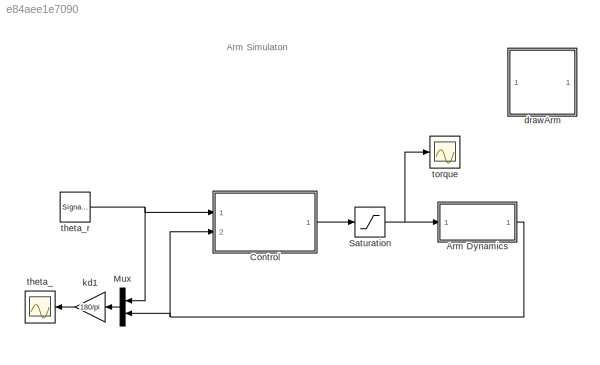
MODEL slx_e84aee1e7090
KIND model
CONFIG AbsTol = auto
CONFIG EnableMultiTasking = on
CONFIG FixedStep = auto
CONFIG InitFcn = addpath ./..\narm_param\narmParamHW7
CONFIG MaxStep = auto
CONFIG MinStep = auto
CONFIG RelTol = 1e-3
CONFIG SampleTimeConstraint = Unconstrained
CONFIG Solver = ode45
CONFIG SolverName = ode45
CONFIG StartTime = 0.0
CONFIG StopTime = 50
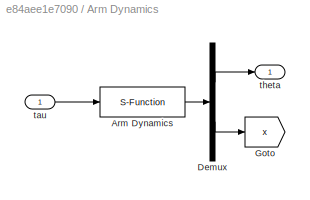
BLOCK [SubSystem] Arm Dynamics 
  Ports = [1, 1]
  RequestExecContextInheritance = off
  Variant = off
BLOCK [S-Function] Arm Dynamics /Arm Dynamics
  EnableBusSupport = off
  FunctionName = arm_dynamics
  Parameters = P
  Ports = [1, 1]
  SFcnIsStateOwnerBlock = off
  SFunctionDeploymentMode = off
BLOCK [Demux] Arm Dynamics /Demux
  DisplayOption = bar
  Outputs = [1;2]
  Ports = [1, 2]
BLOCK [Goto] Arm Dynamics /Goto
  GotoTag = x
  TagVisibility = global
BLOCK [Inport] Arm Dynamics /tau
  IconDisplay = Port number
BLOCK [Outport] Arm Dynamics /theta 
  IconDisplay = Port number
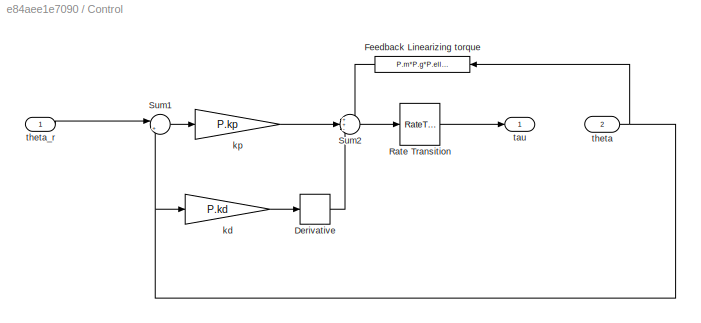
BLOCK [SubSystem] Control
  Ports = [2, 1]
  RequestExecContextInheritance = off
  Variant = off
BLOCK [Derivative] Control/Derivative
  CoefficientInTFapproximation = P.sigma
BLOCK [Fcn] Control/Feedback Linearizing torque
  Expr = P.m*P.g*P.ell/2*cos(u)
BLOCK [RateTransition] Control/Rate Transition
  OutPortSampleTime = P.Ts
BLOCK [Sum] Control/Sum1
  IconShape = round
  InputSameDT = off
  Inputs = |+-
  OutDataTypeStr = Inherit: Inherit via internal rule
  Ports = [2, 1]
  SaturateOnIntegerOverflow = off
BLOCK [Sum] Control/Sum2
  IconShape = round
  InputSameDT = off
  Inputs = ++-
  OutDataTypeStr = Inherit: Inherit via internal rule
  Ports = [3, 1]
  SaturateOnIntegerOverflow = off
BLOCK [Gain] Control/kd
  Gain = P.kd
  OutDataTypeStr = Inherit: Inherit via internal rule
  ParamDataTypeStr = Inherit: Inherit via internal rule
  SaturateOnIntegerOverflow = off
BLOCK [Gain] Control/kp
  Gain = P.kp
  OutDataTypeStr = Inherit: Inherit via internal rule
  ParamDataTypeStr = Inherit: Inherit via internal rule
  SaturateOnIntegerOverflow = off
BLOCK [Outport] Control/tau
  IconDisplay = Port number
BLOCK [Inport] Control/theta
  IconDisplay = Port number
  Port = 2
BLOCK [Inport] Control/theta_r
  IconDisplay = Port number
BLOCK [Mux] Mux
  DisplayOption = bar
  Inputs = 2
  Ports = [2, 1]
BLOCK [Saturate] Saturation
  InputPortMap = u0
  LowerLimit = -P.tau_max
  Ports = [1, 1]
  UpperLimit = P.tau_max
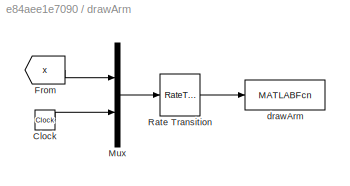
BLOCK [SubSystem] drawArm
  Ports = []
  RequestExecContextInheritance = off
  Variant = off
BLOCK [Clock] drawArm/Clock
BLOCK [From] drawArm/From
  GotoTag = x
  TagVisibility = global
BLOCK [Mux] drawArm/Mux
  DisplayOption = bar
  Inputs = 2
  Ports = [2, 1]
BLOCK [RateTransition] drawArm/Rate Transition
  OutPortSampleTime = P.t_plot
BLOCK [MATLABFcn] drawArm/drawArm
  MATLABFcn = drawArm(u, P)
  OutputDimensions = 0
  Ports = [1]
BLOCK [Gain] kd1
  Gain = 180/pi
  OutDataTypeStr = Inherit: Inherit via internal rule
  ParamDataTypeStr = Inherit: Inherit via internal rule
  SaturateOnIntegerOverflow = off
BLOCK [Scope] theta_
  NumInputPorts = 1
  Ports = [1]
  ScopeSpecificationString = Simulink.scopes.TimeScopeBlockCfg('CurrentConfiguration', extmgr.ConfigurationSet(extmgr.Configuration('Core','General UI',true),extmgr.Configuration('Core','Source UI',true),extmgr.Configuration('Sources','WiredSimulink',true,'DataLoggingVariableName','ScopeData1','DataLoggingSaveFormat','StructureWithTime','DataLoggingLimitDataPoints',true,'DataLoggingDecimation','1','DataLoggingDecimateData',tr...<+1737ch>
BLOCK [SignalGenerator] theta_r
  Amplitude = 25*pi/180
  Frequency = .05
  Ports = [0, 1]
  WaveForm = square
BLOCK [Scope] torque
  NumInputPorts = 1
  Ports = [1]
  ScopeSpecificationString = Simulink.scopes.TimeScopeBlockCfg('CurrentConfiguration', extmgr.ConfigurationSet(extmgr.Configuration('Core','General UI',true),extmgr.Configuration('Core','Source UI',true),extmgr.Configuration('Sources','WiredSimulink',true,'DataLoggingSaveFormat','StructureWithTime','DataLoggingLimitDataPoints',true,'DataLoggingDecimation','1','DataLoggingDecimateData',true),extmgr.Configuration('Visuals','Tim...<+1647ch>
ANNOTATION (root): Arm Simulaton
LINE Arm Dynamics /Arm Dynamics:1 -> Arm Dynamics /Demux:1
LINE Arm Dynamics /Demux:1 -> Arm Dynamics /theta :1
LINE Arm Dynamics /Demux:2 -> Arm Dynamics /Goto:1
LINE Arm Dynamics /tau:1 -> Arm Dynamics /Arm Dynamics:1
NET Arm Dynamics :1 -> Control:2, Mux:2
LINE Control/Derivative:1 -> Control/Sum2:3
LINE Control/Feedback Linearizing torque:1 -> Control/Sum2:1
LINE Control/Rate Transition:1 -> Control/tau:1
LINE Control/Sum1:1 -> Control/kp:1
LINE Control/Sum2:1 -> Control/Rate Transition:1
LINE Control/kd:1 -> Control/Derivative:1
LINE Control/kp:1 -> Control/Sum2:2
NET Control/theta:1 -> Control/Feedback Linearizing torque:1, Control/Sum1:2, Control/kd:1
LINE Control/theta_r:1 -> Control/Sum1:1
LINE Control:1 -> Saturation:1
LINE Mux:1 -> kd1:1
NET Saturation:1 -> Arm Dynamics :1, torque:1
LINE drawArm/Clock:1 -> drawArm/Mux:2
LINE drawArm/From:1 -> drawArm/Mux:1
LINE drawArm/Mux:1 -> drawArm/Rate Transition:1
LINE drawArm/Rate Transition:1 -> drawArm/drawArm:1
LINE kd1:1 -> theta_:1
NET theta_r:1 -> Control:1, Mux:1
note: NET lines group one-source signal fan-out (src -> all destinations, sorted); 1:1 wires keep LINE
